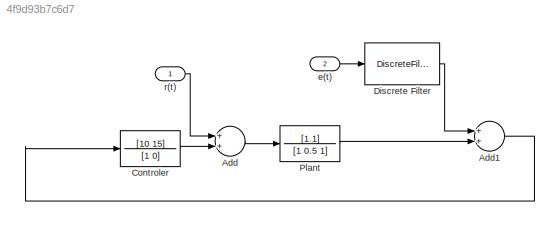
MODEL slx_4f9d93b7c6d7
KIND model
CONFIG AbsTol = auto
CONFIG FixedStep = auto
CONFIG MaxStep = auto
CONFIG MinStep = auto
CONFIG RelTol = 1e-3
CONFIG SampleTimeConstraint = Unconstrained
CONFIG Solver = ode45
CONFIG SolverMode = Auto
CONFIG SolverName = ode45
CONFIG StartTime = 0.0
CONFIG StopTime = 10.0
BLOCK [Sum] Add
  InputSameDT = off
  OutDataTypeStr = Inherit: Inherit via internal rule
  Ports = [2, 1]
  SaturateOnIntegerOverflow = off
BLOCK [Sum] Add1
  InputSameDT = off
  OutDataTypeStr = Inherit: Inherit via internal rule
  Ports = [2, 1]
  SaturateOnIntegerOverflow = off
BLOCK [TransferFcn] Controler
  Denominator = [1 0]
  Numerator = [10 15]
BLOCK [DiscreteFilter] Discrete Filter
  Denominator = [1 -0.85]
  InputPortMap = u0
  Numerator = [1 0.5]
  Ports = [1, 1]
  SampleTime = 1
BLOCK [TransferFcn] Plant
  Denominator = [1  0.5 1]
  Numerator = [1 1]
BLOCK [Inport] e(t)
  IconDisplay = Port number
  Port = 2
BLOCK [Inport] r(t)
  IconDisplay = Port number
LINE Add1:1 -> Controler:1
LINE Add:1 -> Plant:1
LINE Controler:1 -> Add:2
LINE Discrete Filter:1 -> Add1:1
LINE Plant:1 -> Add1:2
LINE e(t):1 -> Discrete Filter:1
LINE r(t):1 -> Add:1
